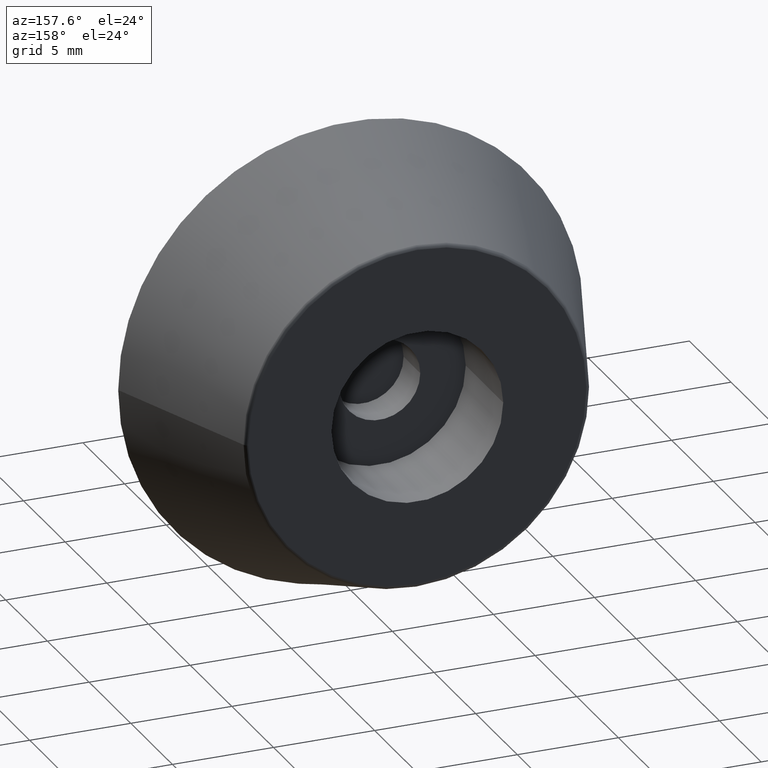
[diagram: clean part render]
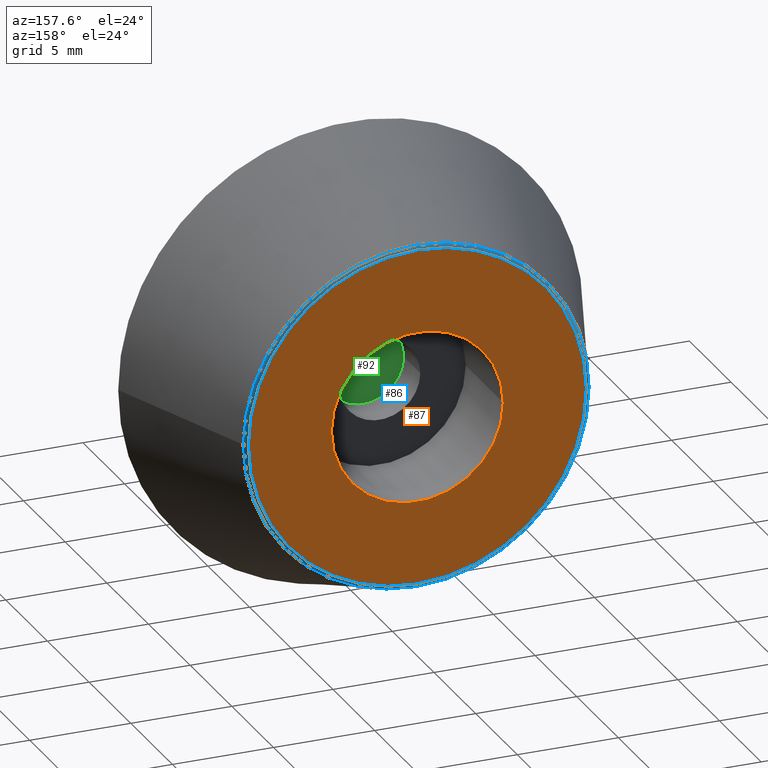
[diagram: same view with three faces highlighted in distinct colors, each labeled with its STEP entity id]
A machine part, auxiliary view with three faces highlighted in distinct colors.
Their STEP definitions:

[orange] entity #87 — the highlighted planar face has unit normal (0, -1, 0).
#18=PLANE('',#99);
#23=FACE_BOUND('',#39,.T.);
#29=FACE_OUTER_BOUND('',#38,.T.);
#38=EDGE_LOOP('',(#73));
#39=EDGE_LOOP('',(#74));
#50=CIRCLE('',#97,8.36139990636706);
#52=CIRCLE('',#100,4.25);
#57=VERTEX_POINT('',#145);
#59=VERTEX_POINT('',#150);
#64=EDGE_CURVE('',#57,#57,#50,.T.);
#66=EDGE_CURVE('',#59,#59,#52,.T.);
#73=ORIENTED_EDGE('',*,*,#64,.F.);
#74=ORIENTED_EDGE('',*,*,#66,.T.);
#87=ADVANCED_FACE('',(#29,#23),#18,.F.);
#97=AXIS2_PLACEMENT_3D('',#146,#115,#116);
#99=AXIS2_PLACEMENT_3D('',#149,#119,#120);
#100=AXIS2_PLACEMENT_3D('',#151,#121,#122);
#115=DIRECTION('center_axis',(0.,-1.,0.));
#116=DIRECTION('ref_axis',(-1.,0.,1.22464679914735E-16));
#119=DIRECTION('center_axis',(0.,-1.,0.));
#120=DIRECTION('ref_axis',(0.,0.,-1.));
#121=DIRECTION('center_axis',(0.,-1.,0.));
#122=DIRECTION('ref_axis',(-1.,0.,0.));
#145=CARTESIAN_POINT('',(8.36139990636706,8.,0.));
#146=CARTESIAN_POINT('Origin',(0.,8.,0.));
#149=CARTESIAN_POINT('Origin',(0.,8.,0.));
#150=CARTESIAN_POINT('',(-4.25,8.,0.));
#151=CARTESIAN_POINT('Origin',(0.,8.,0.));

[blue] entity #86 — the highlighted toroidal blend (fillet) surface has major radius 8.3614 mm and minor (blend) radius 0.2 mm.
#22=FACE_BOUND('',#37,.T.);
#28=FACE_OUTER_BOUND('',#36,.T.);
#36=EDGE_LOOP('',(#71));
#37=EDGE_LOOP('',(#72));
#50=CIRCLE('',#97,8.36139990636706);
#51=CIRCLE('',#98,8.54866574188087);
#57=VERTEX_POINT('',#145);
#58=VERTEX_POINT('',#147);
#64=EDGE_CURVE('',#57,#57,#50,.T.);
#65=EDGE_CURVE('',#58,#58,#51,.T.);
#71=ORIENTED_EDGE('',*,*,#64,.T.);
#72=ORIENTED_EDGE('',*,*,#65,.T.);
#85=TOROIDAL_SURFACE('',#96,8.36139990636706,0.2);
#86=ADVANCED_FACE('',(#28,#22),#85,.T.);
#96=AXIS2_PLACEMENT_3D('',#144,#113,#114);
#97=AXIS2_PLACEMENT_3D('',#146,#115,#116);
#98=AXIS2_PLACEMENT_3D('',#148,#117,#118);
#113=DIRECTION('center_axis',(0.,-1.,0.));
#114=DIRECTION('ref_axis',(0.,0.,-1.));
#115=DIRECTION('center_axis',(0.,-1.,0.));
#116=DIRECTION('ref_axis',(-1.,0.,1.22464679914735E-16));
#117=DIRECTION('center_axis',(0.,1.,0.));
#118=DIRECTION('ref_axis',(-1.,0.,1.22464679914735E-16));
#144=CARTESIAN_POINT('Origin',(0.,7.8,0.));
#145=CARTESIAN_POINT('',(8.36139990636706,8.,0.));
#146=CARTESIAN_POINT('Origin',(0.,8.,0.));
#147=CARTESIAN_POINT('',(8.54866574188087,7.87022468831768,-2.09381922755501E-15));
#148=CARTESIAN_POINT('Origin',(0.,7.87022468831768,1.23259516440783E-31));

[green] entity #92 — the highlighted planar face has unit normal (0, 1, 0).
#20=PLANE('',#109);
#34=FACE_OUTER_BOUND('',#48,.T.);
#48=EDGE_LOOP('',(#83));
#56=CIRCLE('',#108,2.);
#63=VERTEX_POINT('',#162);
#70=EDGE_CURVE('',#63,#63,#56,.T.);
#83=ORIENTED_EDGE('',*,*,#70,.T.);
#92=ADVANCED_FACE('',(#34),#20,.T.);
#108=AXIS2_PLACEMENT_3D('',#163,#137,#138);
#109=AXIS2_PLACEMENT_3D('',#164,#139,#140);
#137=DIRECTION('center_axis',(0.,1.,0.));
#138=DIRECTION('ref_axis',(-1.,0.,0.));
#139=DIRECTION('center_axis',(0.,1.,0.));
#140=DIRECTION('ref_axis',(-1.,0.,0.));
#162=CARTESIAN_POINT('',(-2.,1.5,0.));
#163=CARTESIAN_POINT('Origin',(0.,1.5,0.));
#164=CARTESIAN_POINT('Origin',(0.,1.5,0.));